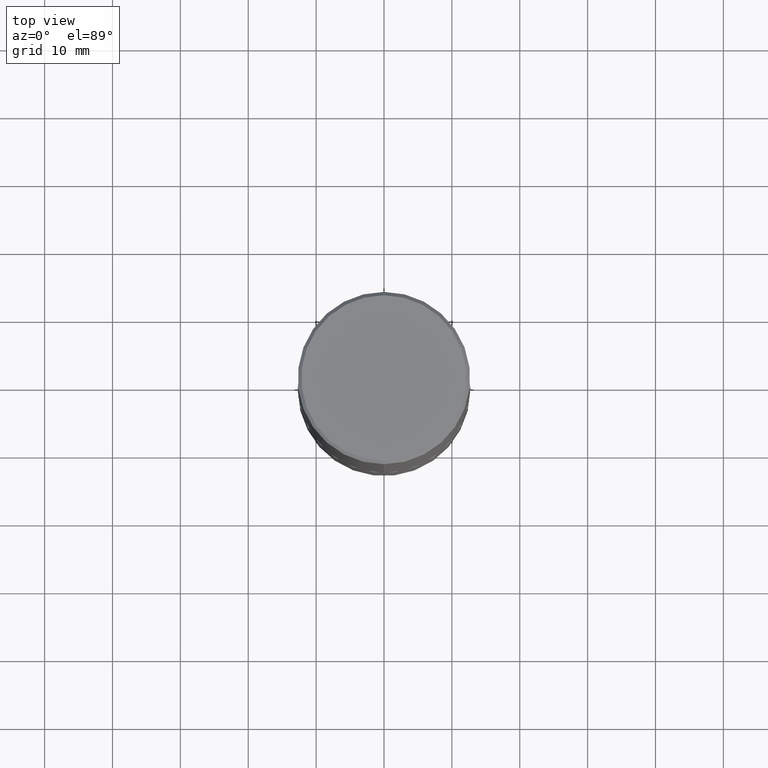
[diagram: clean part render]
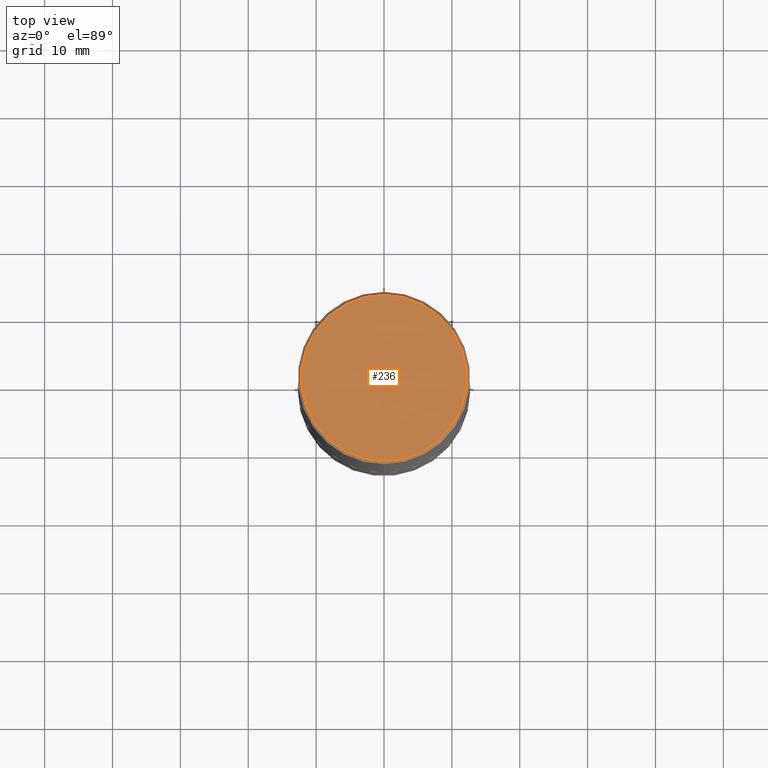
[diagram: same view with one face highlighted and labeled with its STEP entity id]
A machine part, top view. The second image highlights one B-rep face of the part: STEP entity #236.
In plain terms, the highlighted planar face has unit normal (0, -0, -1).
Its self-contained STEP definition (entity closure, byte-faithful):
#7 = CARTESIAN_POINT ( 'NONE',  ( 3.421651712066270057E-15, 0.4799999999999998157, -1.419800293238684484E-15 ) ) ;
#16 = CARTESIAN_POINT ( 'NONE',  ( -3.361644018908049661E-15, -0.4799999999999998157, 1.932412870840429584E-15 ) ) ;
#36 = CIRCLE ( 'NONE', #223, 0.4799999999999998157 ) ;
#58 = EDGE_CURVE ( 'NONE', #270, #91, #184, .T. ) ;
#59 = CARTESIAN_POINT ( 'NONE',  ( -6.267161232665850175E-45, 8.949930368276549801E-31, 2.563062888008726491E-16 ) ) ;
#61 = DIRECTION ( 'NONE',  ( -2.445184338623419792E-29, 3.491888712582412164E-15, 1.000000000000000000 ) ) ;
#86 = DIRECTION ( 'NONE',  ( -2.445184338623419792E-29, 3.491888712582412164E-15, 1.000000000000000000 ) ) ;
#91 = VERTEX_POINT ( 'NONE', #7 ) ;
#123 = DIRECTION ( 'NONE',  ( 2.445184338623419231E-29, -3.491888712582412558E-15, -1.000000000000000000 ) ) ;
#128 = DIRECTION ( 'NONE',  ( -6.982962677686265922E-15, -1.000000000000000000, 3.491888712582411769E-15 ) ) ;
#157 = DIRECTION ( 'NONE',  ( -6.982962677686265922E-15, -1.000000000000000000, 3.491888712582411769E-15 ) ) ;
#180 = CARTESIAN_POINT ( 'NONE',  ( -6.267161232665850175E-45, 8.949930368276549801E-31, 2.563062888008726491E-16 ) ) ;
#184 = CIRCLE ( 'NONE', #316, 0.4799999999999998157 ) ;
#223 = AXIS2_PLACEMENT_3D ( 'NONE', #180, #86, #157 ) ;
#236 = ADVANCED_FACE ( 'NONE', ( #410 ), #285, .F. ) ;
#270 = VERTEX_POINT ( 'NONE', #16 ) ;
#275 = DIRECTION ( 'NONE',  ( 6.982962677686265922E-15, 1.000000000000000000, -3.491888712582412558E-15 ) ) ;
#285 = PLANE ( 'NONE',  #337 ) ;
#316 = AXIS2_PLACEMENT_3D ( 'NONE', #59, #61, #128 ) ;
#337 = AXIS2_PLACEMENT_3D ( 'NONE', #348, #123, #275 ) ;
#341 = EDGE_CURVE ( 'NONE', #91, #270, #36, .T. ) ;
#348 = CARTESIAN_POINT ( 'NONE',  ( 3.351822085289406364E-15, 0.4799999999999998157, -1.547953437639120956E-15 ) ) ;
#376 = EDGE_LOOP ( 'NONE', ( #386, #382 ) ) ;
#382 = ORIENTED_EDGE ( 'NONE', *, *, #58, .T. ) ;
#386 = ORIENTED_EDGE ( 'NONE', *, *, #341, .T. ) ;
#410 = FACE_OUTER_BOUND ( 'NONE', #376, .T. ) ;